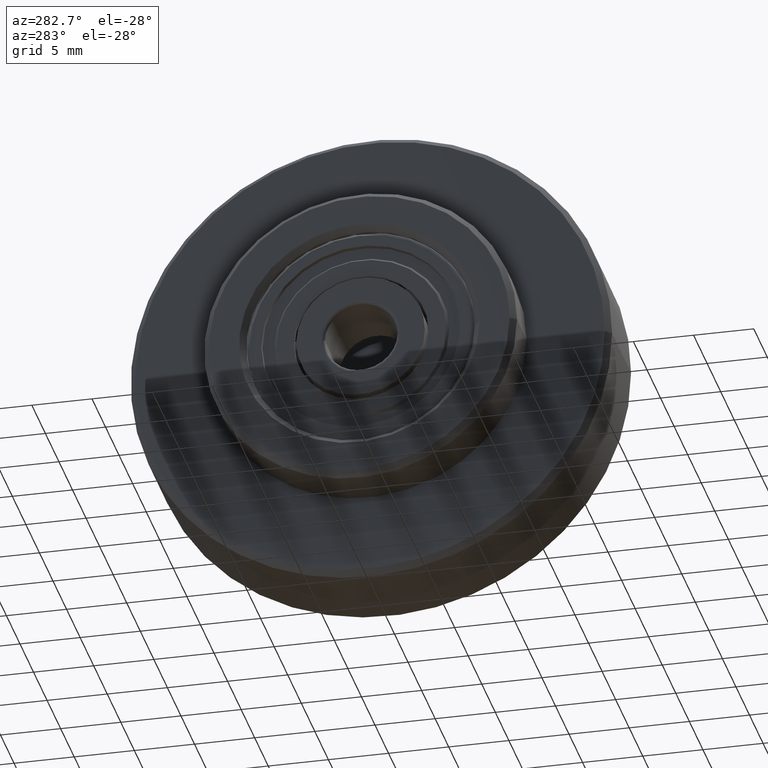
[diagram: clean part render]
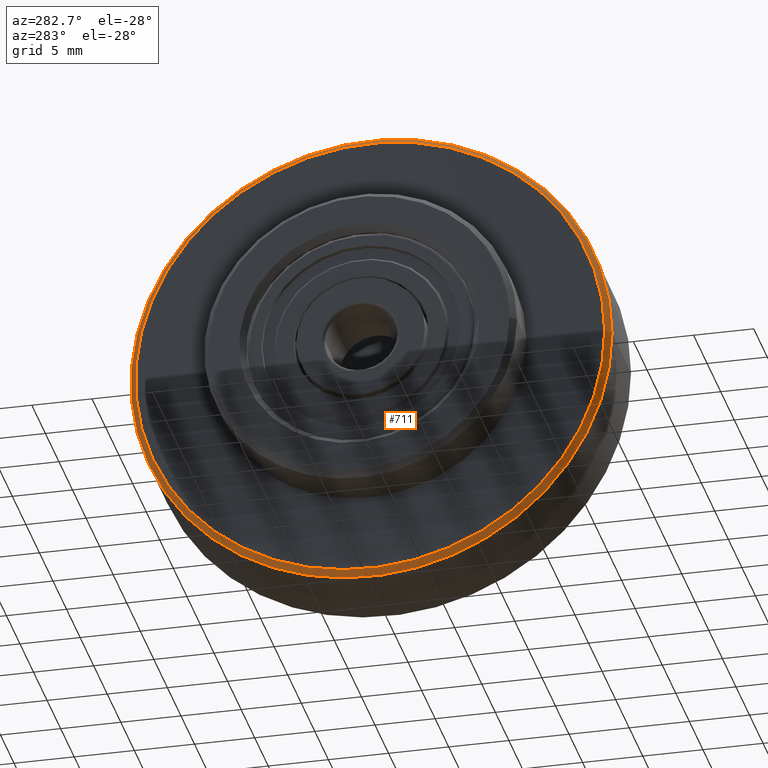
[diagram: same view with one face highlighted and labeled with its STEP entity id]
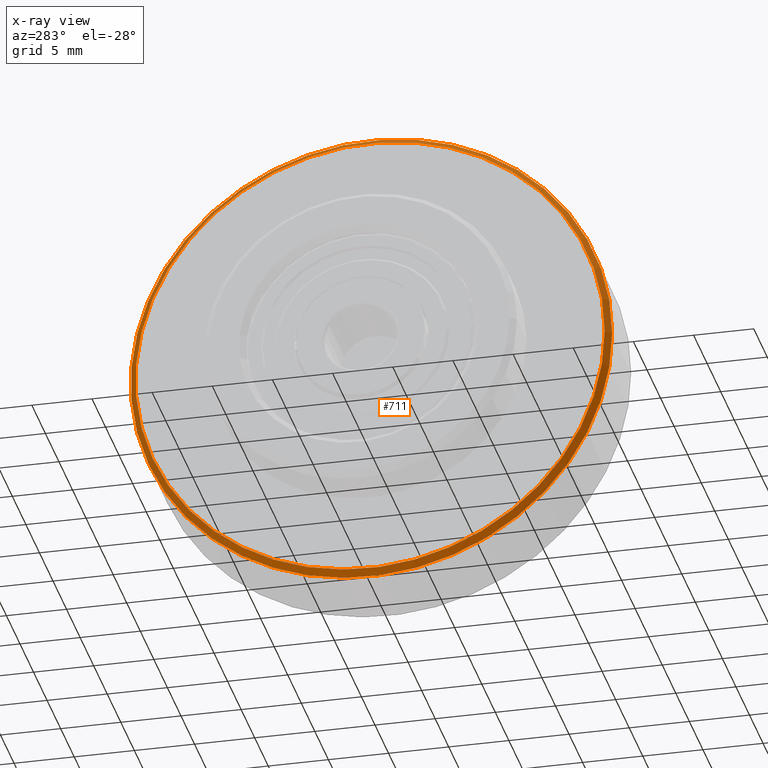
[diagram: x-ray of the same camera — body ghosted, the highlighted face saturated]
A machine part, auxiliary view. The second image highlights one B-rep face of the part: STEP entity #711.
The next image is the same camera in x-ray: the body ghosted, the highlighted face saturated — about 0% of this face is hidden behind the body in this view.
In plain terms, the highlighted conical surface has half-angle 45 deg.
Its self-contained STEP definition (entity closure, byte-faithful):
#95=CONICAL_SURFACE('',#813,19.9499999999202,45.0000000000004);
#107=FACE_BOUND('',#238,.T.);
#171=FACE_OUTER_BOUND('',#237,.T.);
#237=EDGE_LOOP('',(#567));
#238=EDGE_LOOP('',(#568));
#355=CIRCLE('',#812,19.99999999992);
#356=CIRCLE('',#814,19.499999999922);
#421=VERTEX_POINT('',#1232);
#422=VERTEX_POINT('',#1235);
#495=EDGE_CURVE('',#421,#421,#355,.T.);
#496=EDGE_CURVE('',#422,#422,#356,.T.);
#567=ORIENTED_EDGE('',*,*,#496,.T.);
#568=ORIENTED_EDGE('',*,*,#495,.F.);
#711=ADVANCED_FACE('',(#171,#107),#95,.T.);
#812=AXIS2_PLACEMENT_3D('',#1233,#963,#964);
#813=AXIS2_PLACEMENT_3D('',#1234,#965,#966);
#814=AXIS2_PLACEMENT_3D('',#1236,#967,#968);
#963=DIRECTION('center_axis',(1.,0.,0.));
#964=DIRECTION('ref_axis',(0.,1.,0.));
#965=DIRECTION('center_axis',(1.,2.80353548521096E-017,-3.80063223752934E-016));
#966=DIRECTION('ref_axis',(1.98042098980451E-016,0.813826036051075,0.581108581114919));
#967=DIRECTION('center_axis',(1.,0.,0.));
#968=DIRECTION('ref_axis',(0.,1.,0.));
#1232=CARTESIAN_POINT('',(-13.499999999946,-19.99999999992,0.));
#1233=CARTESIAN_POINT('Origin',(-13.499999999946,0.,0.));
#1234=CARTESIAN_POINT('Origin',(-13.5499999999458,-4.44089209850063E-015,
2.22044604925031E-015));
#1235=CARTESIAN_POINT('',(-13.999999999944,-19.499999999922,0.));
#1236=CARTESIAN_POINT('Origin',(-13.999999999944,0.,0.));